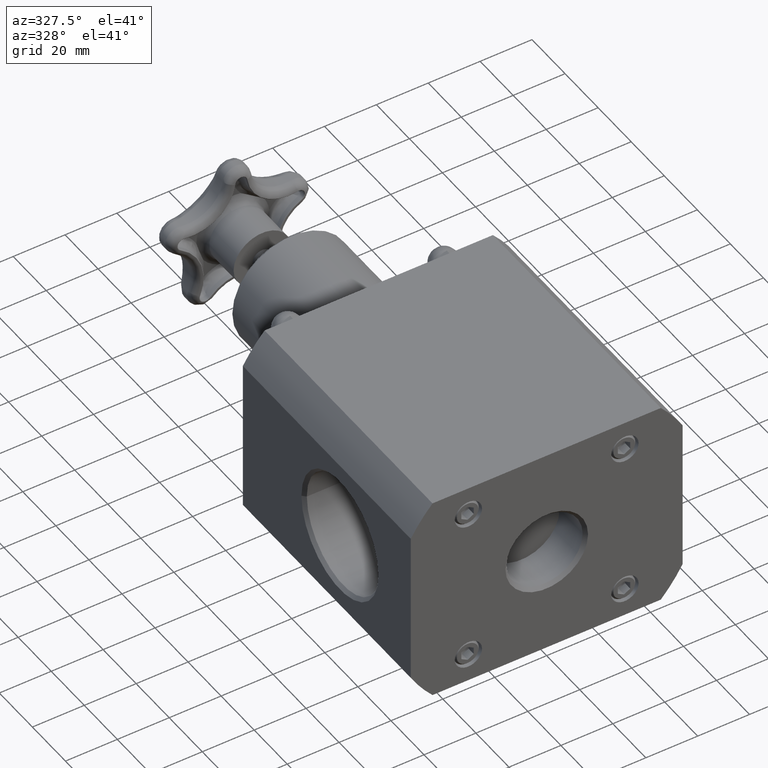
[diagram: clean part render]
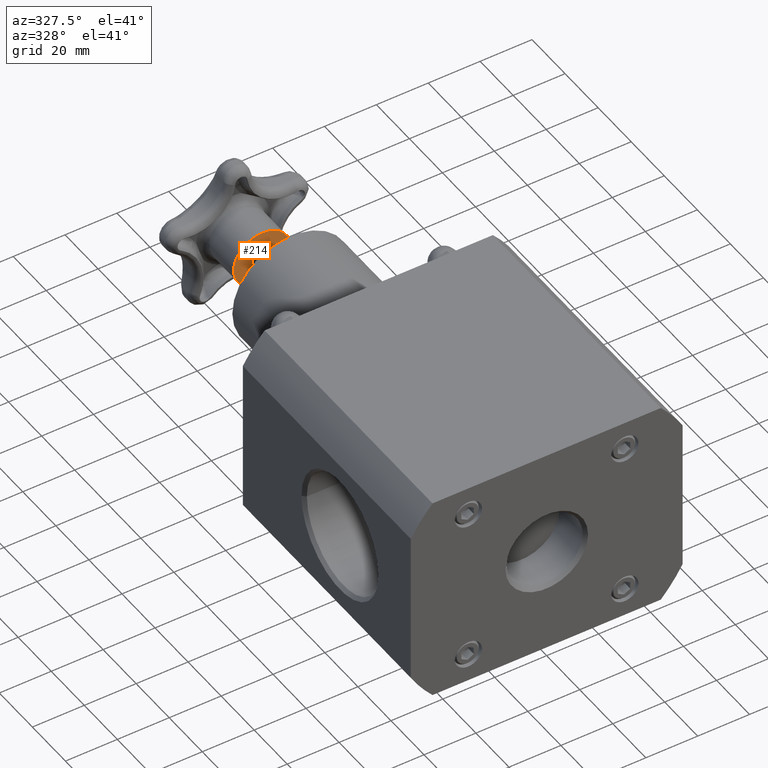
[diagram: same view with one face highlighted and labeled with its STEP entity id]
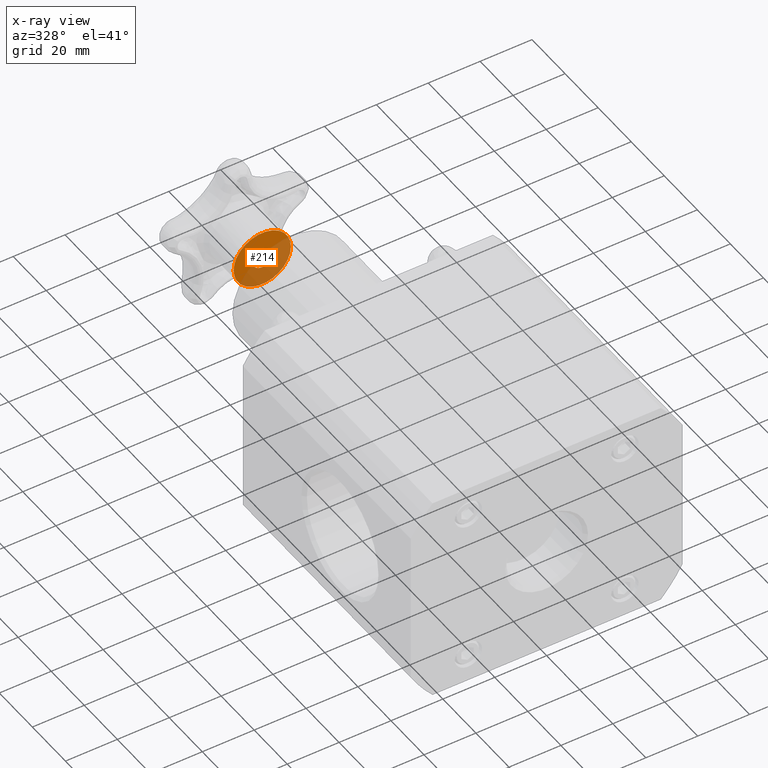
[diagram: x-ray of the same camera — body ghosted, the highlighted face saturated]
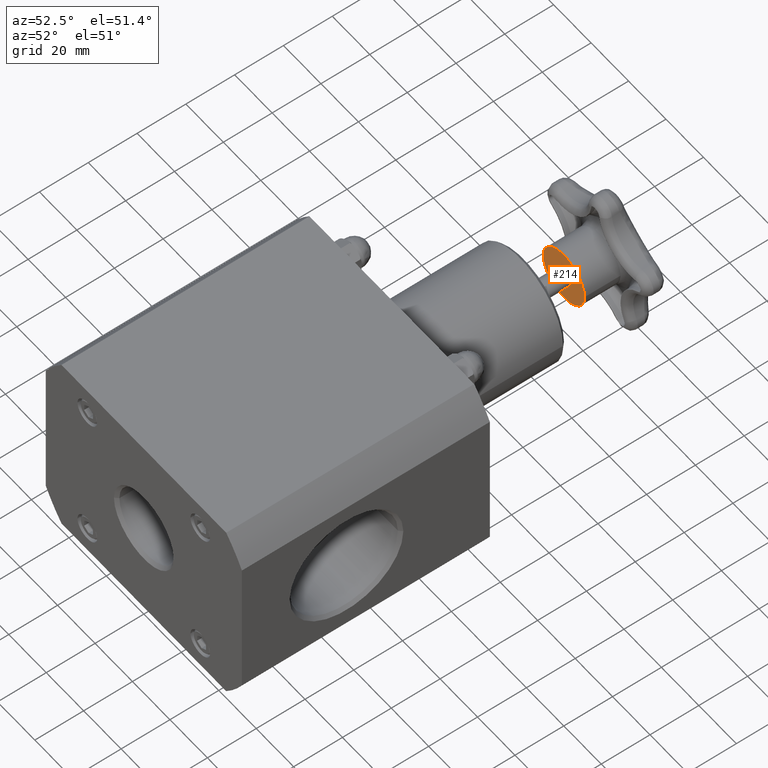
[diagram: same view with one face highlighted and labeled with its STEP entity id]
A machine part, auxiliary view. The second image highlights one B-rep face of the part: STEP entity #214.
The next image is the same camera in x-ray: the body ghosted, the highlighted face saturated — about 50% of this face is hidden behind the body in this view.
A second angle (auxiliary view) of the same face is appended — the face is thin or edge-on in the first view.
In plain terms, the highlighted planar face has unit normal (0, 1, 0).
Its self-contained STEP definition (entity closure, byte-faithful):
#180=CARTESIAN_POINT('',(-0.146500000000006,6.775500000000000,-4.048906E-016));
#181=VERTEX_POINT('',#180);
#182=CARTESIAN_POINT('',(-5.516405E-015,6.775500000000000,-4.228317E-016));
#183=DIRECTION('',(0.0,1.0,0.0));
#184=DIRECTION('',(1.0,0.0,0.0));
#185=AXIS2_PLACEMENT_3D('',#182,#183,#184);
#186=CIRCLE('',#185,0.146500000000000);
#187=EDGE_CURVE('',#181,#181,#186,.T.);
#195=CARTESIAN_POINT('',(-5.483311E-015,6.775500000000000,-4.228317E-016));
#196=DIRECTION('',(0.0,1.0,0.0));
#197=DIRECTION('',(0.0,0.0,1.0));
#198=AXIS2_PLACEMENT_3D('',#195,#196,#197);
#199=PLANE('',#198);
#200=CARTESIAN_POINT('',(0.434999999999995,6.775500000000000,-4.228317E-016));
#201=VERTEX_POINT('',#200);
#202=CARTESIAN_POINT('',(-5.483311E-015,6.775500000000000,-4.228317E-016));
#203=DIRECTION('',(0.0,-1.0,0.0));
#204=DIRECTION('',(1.0,0.0,0.0));
#205=AXIS2_PLACEMENT_3D('',#202,#203,#204);
#206=CIRCLE('',#205,0.435000000000000);
#207=EDGE_CURVE('',#201,#201,#206,.T.);
#208=ORIENTED_EDGE('',*,*,#207,.T.);
#209=EDGE_LOOP('',(#208));
#210=FACE_OUTER_BOUND('',#209,.T.);
#211=ORIENTED_EDGE('',*,*,#187,.T.);
#212=EDGE_LOOP('',(#211));
#213=FACE_BOUND('',#212,.T.);
#214=ADVANCED_FACE('',(#210,#213),#199,.F.);